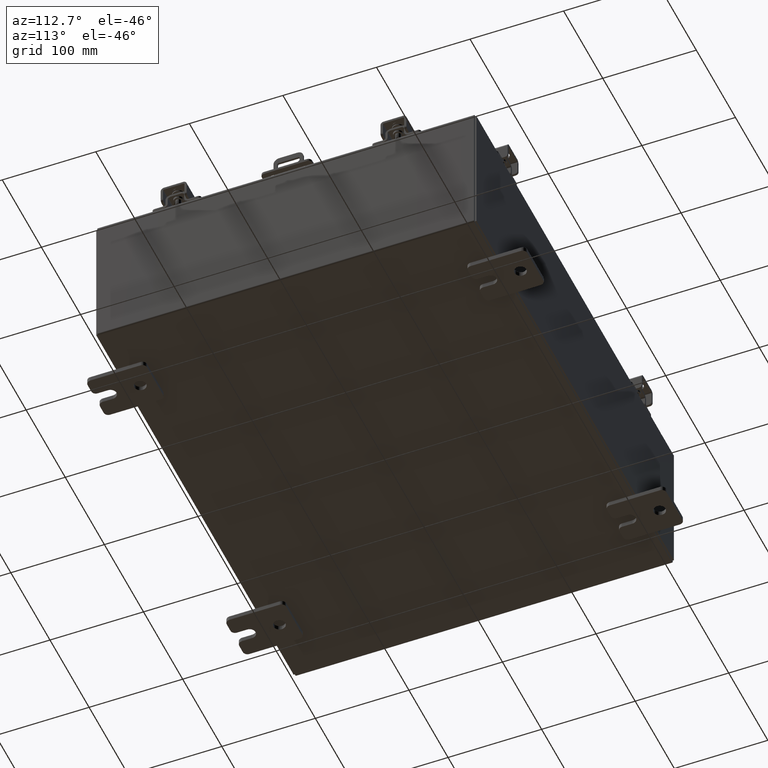
[diagram: clean part render]
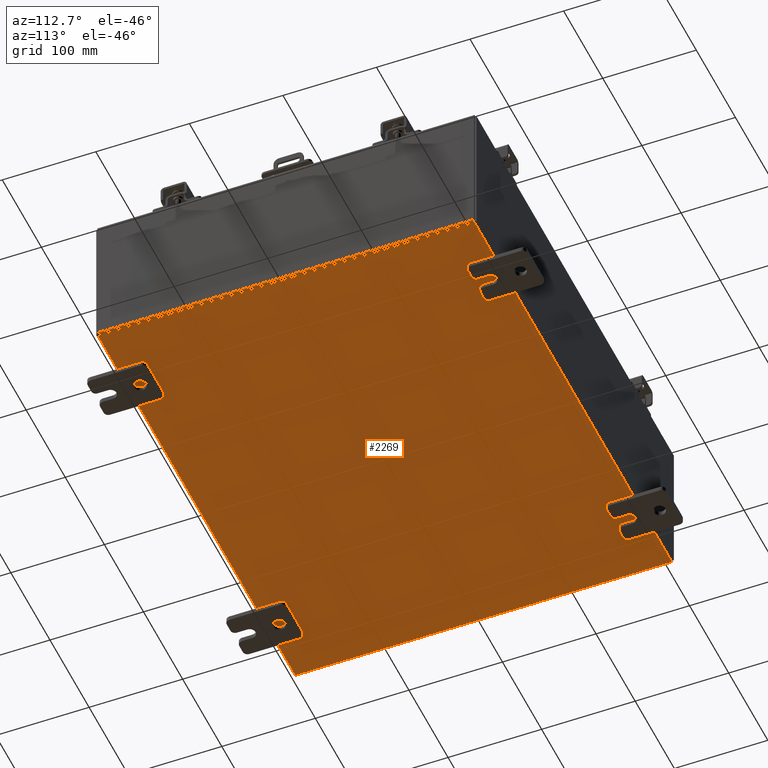
[diagram: same view with one face highlighted and labeled with its STEP entity id]
A machine part, auxiliary view. The second image highlights one B-rep face of the part: STEP entity #2269.
In plain terms, the highlighted planar face has unit normal (0, 0, -1).
Its self-contained STEP definition (entity closure, byte-faithful):
#58 = CARTESIAN_POINT ( 'NONE',  ( 9.912300000000000100, 7.925300000000000000, -0.07469999999999994700 ) ) ;
#168 = ORIENTED_EDGE ( 'NONE', *, *, #13208, .T. ) ;
#985 = DIRECTION ( 'NONE',  ( -0.0000000000000000000, 1.000000000000000000, -0.0000000000000000000 ) ) ;
#1095 = VECTOR ( 'NONE', #985, 39.37007874015748100 ) ;
#1098 = ORIENTED_EDGE ( 'NONE', *, *, #7062, .F. ) ;
#1332 = CARTESIAN_POINT ( 'NONE',  ( -9.912300000000000100, -7.925300000000000000, -0.07469999999999994700 ) ) ;
#1740 = CARTESIAN_POINT ( 'NONE',  ( -10.00000000000000000, 7.925300000000000000, -0.07470000000000000300 ) ) ;
#1798 = LINE ( 'NONE', #3296, #14195 ) ;
#2269 = ADVANCED_FACE ( 'NONE', ( #12578 ), #4695, .T. ) ;
#2330 = VECTOR ( 'NONE', #10954, 39.37007874015748100 ) ;
#2893 = CARTESIAN_POINT ( 'NONE',  ( -10.00000000000000000, -7.925300000000000000, -0.07470000000000000300 ) ) ;
#3296 = CARTESIAN_POINT ( 'NONE',  ( 9.912300000000000100, 7.925300000000000000, -0.07469999999999994700 ) ) ;
#3312 = DIRECTION ( 'NONE',  ( -1.000000000000000000, -0.0000000000000000000, -0.0000000000000000000 ) ) ;
#4695 = PLANE ( 'NONE',  #17029 ) ;
#4940 = DIRECTION ( 'NONE',  ( -0.0000000000000000000, -1.000000000000000000, -0.0000000000000000000 ) ) ;
#5352 = LINE ( 'NONE', #13831, #1095 ) ;
#6319 = DIRECTION ( 'NONE',  ( 0.0000000000000000000, 0.0000000000000000000, -1.000000000000000000 ) ) ;
#6629 = LINE ( 'NONE', #2893, #2330 ) ;
#7062 = EDGE_CURVE ( 'NONE', #9743, #19647, #6629, .T. ) ;
#9586 = VERTEX_POINT ( 'NONE', #58 ) ;
#9743 = VERTEX_POINT ( 'NONE', #1332 ) ;
#10044 = CARTESIAN_POINT ( 'NONE',  ( -9.912300000000000100, 7.925300000000000000, -0.07470000000000000300 ) ) ;
#10387 = LINE ( 'NONE', #1740, #19010 ) ;
#10954 = DIRECTION ( 'NONE',  ( 1.000000000000000000, 0.0000000000000000000, 0.0000000000000000000 ) ) ;
#12412 = EDGE_CURVE ( 'NONE', #9743, #14007, #5352, .T. ) ;
#12578 = FACE_OUTER_BOUND ( 'NONE', #16872, .T. ) ;
#12683 = EDGE_CURVE ( 'NONE', #9586, #14007, #10387, .T. ) ;
#13208 = EDGE_CURVE ( 'NONE', #9586, #19647, #1798, .T. ) ;
#13831 = CARTESIAN_POINT ( 'NONE',  ( -9.912300000000000100, -7.925300000000000000, -0.07469999999999994700 ) ) ;
#14007 = VERTEX_POINT ( 'NONE', #10044 ) ;
#14195 = VECTOR ( 'NONE', #4940, 39.37007874015748100 ) ;
#15996 = CARTESIAN_POINT ( 'NONE',  ( 0.0000000000000000000, 0.0000000000000000000, -0.07470000000000000300 ) ) ;
#16446 = ORIENTED_EDGE ( 'NONE', *, *, #12683, .F. ) ;
#16872 = EDGE_LOOP ( 'NONE', ( #1098, #19411, #16446, #168 ) ) ;
#17029 = AXIS2_PLACEMENT_3D ( 'NONE', #15996, #6319, #17622 ) ;
#17622 = DIRECTION ( 'NONE',  ( -1.000000000000000000, 0.0000000000000000000, -0.0000000000000000000 ) ) ;
#19010 = VECTOR ( 'NONE', #3312, 39.37007874015748100 ) ;
#19411 = ORIENTED_EDGE ( 'NONE', *, *, #12412, .T. ) ;
#19647 = VERTEX_POINT ( 'NONE', #20643 ) ;
#20643 = CARTESIAN_POINT ( 'NONE',  ( 9.912300000000000100, -7.925300000000000000, -0.07470000000000000300 ) ) ;